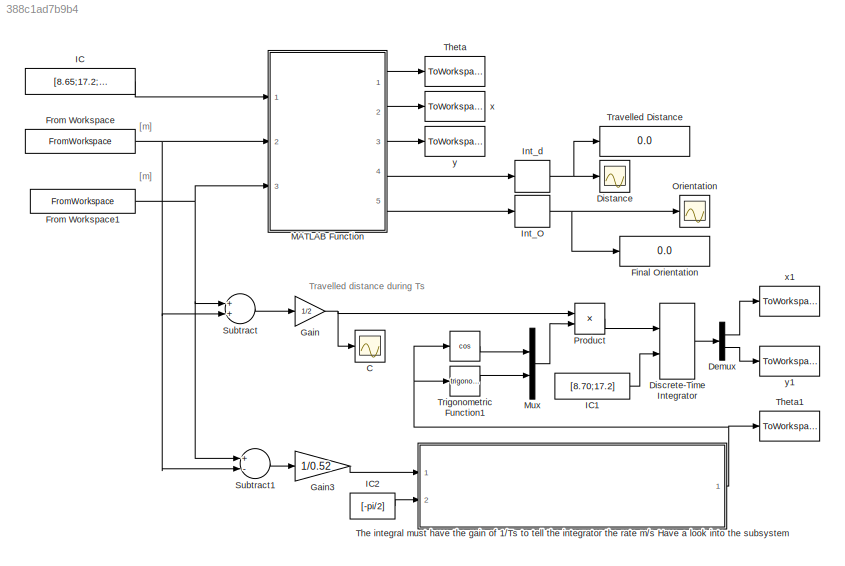
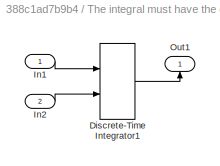
MODEL slx_388c1ad7b9b4
KIND model
CONFIG AbsTol = auto
CONFIG EnableMultiTasking = on
CONFIG FixedStep = 0.02
CONFIG InitFcn = load('Pose_integration_R_L.mat')\n
CONFIG MaxStep = auto
CONFIG MinStep = auto
CONFIG RelTol = 1e-3
CONFIG SampleTimeConstraint = Unconstrained
CONFIG Solver = FixedStepDiscrete
CONFIG SolverName = FixedStepDiscrete
CONFIG StartTime = 0.0
CONFIG StopFcn = I = imread('Enviroment.png');\nx = [0 35.9];\ny=[23.31 0];\nimage(I,'XData',x,'YData',y);\naxis xy;\nhold on\nplot (X.Data, Y.Data,'b');\nplot (X1.Data, Y1.Data,'r');
CONFIG StopTime = 60
BLOCK [Trigonometry]  
  Operator = cos
  Ports = [1, 1]
BLOCK [Scope] C
  NumInputPorts = 1
  Ports = [1]
  ScopeSpecificationString = Simulink.scopes.TimeScopeBlockCfg('CurrentConfiguration', extmgr.ConfigurationSet(extmgr.Configuration('Core','General UI',true),extmgr.Configuration('Core','Source UI',true),extmgr.Configuration('Sources','WiredSimulink',true),extmgr.Configuration('Visuals','Time Domain',true,'SerializedDisplays',{struct('MinYLimReal','-0.00324','MaxYLimReal','0.02097','YLabelReal','','MinYLimMag','0.00000','MaxY...<+1324ch>
BLOCK [Demux] Demux
  DisplayOption = bar
  Outputs = 2
  Ports = [1, 2]
BLOCK [DiscreteIntegrator] Discrete-Time Integrator
  ICPrevOutput = DiscIntNeverNeededParam
  ICPrevScaledInput = DiscIntNeverNeededParam
  InitialConditionSetting = State (most efficient)
  InitialConditionSource = external
  Ports = [2, 1]
  SampleTime = Ts
  gainval = 1/Ts
BLOCK [Scope] Distance
  NumInputPorts = 1
  Ports = [1]
  ScopeSpecificationString = Simulink.scopes.TimeScopeBlockCfg('CurrentConfiguration', extmgr.ConfigurationSet(extmgr.Configuration('Core','General UI',true),extmgr.Configuration('Core','Source UI',true),extmgr.Configuration('Sources','WiredSimulink',true,'DataLoggingVariableName','ScopeData2'),extmgr.Configuration('Visuals','Time Domain',true,'SerializedDisplays',{struct('MinYLimReal','-3.88072','MaxYLimReal','34.92649','YLa...<+1417ch>
BLOCK [Display] Final Orientation
  Decimation = 1
  Ports = [1]
BLOCK [FromWorkspace] From Workspace
  SampleTime = 0
  VariableName = L
  ZeroCross = on
BLOCK [FromWorkspace] From Workspace1
  SampleTime = 0
  VariableName = R
  ZeroCross = on
BLOCK [Gain] Gain
  Gain = 1/2
  OutDataTypeStr = Inherit: Inherit via internal rule
  ParamDataTypeStr = Inherit: Inherit via internal rule
  SaturateOnIntegerOverflow = off
BLOCK [Gain] Gain3
  Gain = 1/0.52
  OutDataTypeStr = Inherit: Inherit via internal rule
  ParamDataTypeStr = Inherit: Inherit via internal rule
  SaturateOnIntegerOverflow = off
BLOCK [Constant] IC
  Value = [8.65;17.2;-pi/2]
BLOCK [Constant] IC1
  Value = [8.70;17.2]
BLOCK [Constant] IC2
  Value = [-pi/2]
BLOCK [DiscreteIntegrator] Int_O
  ICPrevOutput = DiscIntNeverNeededParam
  ICPrevScaledInput = DiscIntNeverNeededParam
  InitialCondition = -pi/2
  InitialConditionSetting = State (most efficient)
  Ports = [1, 1]
  SampleTime = Ts
  gainval = 1/Ts
BLOCK [DiscreteIntegrator] Int_d
  ICPrevOutput = DiscIntNeverNeededParam
  ICPrevScaledInput = DiscIntNeverNeededParam
  InitialConditionSetting = State (most efficient)
  Ports = [1, 1]
  SampleTime = Ts
  gainval = 1/Ts
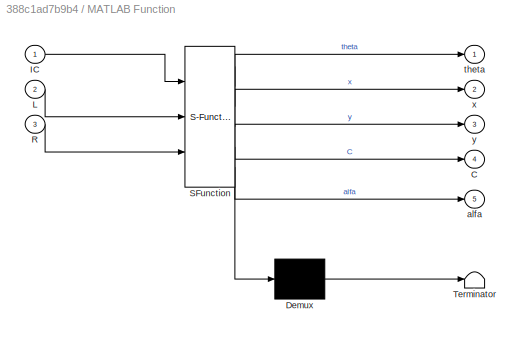
BLOCK [SubSystem] MATLAB Function
  ErrorFcn = Stateflow.Translate.translate
  PermitHierarchicalResolution = ExplicitOnly
  Ports = [3, 5]
  RequestExecContextInheritance = off
  SFBlockType = MATLAB Function
  TreatAsAtomicUnit = on
  Variant = off
BLOCK [Demux] MATLAB Function/ Demux 
  Outputs = 1
  Ports = [1, 1]
BLOCK [S-Function] MATLAB Function/ SFunction 
  EnableBusSupport = off
  FunctionName = sf_sfun
  PortCounts = [3 6]
  Ports = [3, 6]
  SFcnIsStateOwnerBlock = off
  SFunctionDeploymentMode = off
  Tag = Stateflow S-Function Pose_integration_R_L 2
BLOCK [Terminator] MATLAB Function/ Terminator 
BLOCK [Outport] MATLAB Function/C
  IconDisplay = Port number
  Port = 4
BLOCK [Inport] MATLAB Function/IC
  IconDisplay = Port number
BLOCK [Inport] MATLAB Function/L
  IconDisplay = Port number
  Port = 2
BLOCK [Inport] MATLAB Function/R
  IconDisplay = Port number
  Port = 3
BLOCK [Outport] MATLAB Function/alfa
  IconDisplay = Port number
  Port = 5
BLOCK [Outport] MATLAB Function/theta
  IconDisplay = Port number
BLOCK [Outport] MATLAB Function/x
  IconDisplay = Port number
  Port = 2
BLOCK [Outport] MATLAB Function/y
  IconDisplay = Port number
  Port = 3
BLOCK [Mux] Mux
  DisplayOption = bar
  Inputs = 2
  Ports = [2, 1]
BLOCK [Scope] Orientation
  NumInputPorts = 1
  Ports = [1]
  ScopeSpecificationString = Simulink.scopes.TimeScopeBlockCfg('CurrentConfiguration', extmgr.ConfigurationSet(extmgr.Configuration('Core','General UI',true),extmgr.Configuration('Core','Source UI',true),extmgr.Configuration('Sources','WiredSimulink',true,'DataLoggingVariableName','ScopeData3'),extmgr.Configuration('Visuals','Time Domain',true,'SerializedDisplays',{struct('MinYLimReal','-2.36647','MaxYLimReal','3.93488','YLab...<+1414ch>
BLOCK [Product] Product
  InputSameDT = off
  OutDataTypeStr = Inherit: Inherit via internal rule
  Ports = [2, 1]
  RndMeth = Floor
  SaturateOnIntegerOverflow = off
BLOCK [Sum] Subtract
  InputSameDT = off
  OutDataTypeStr = Inherit: Inherit via internal rule
  Ports = [2, 1]
  SaturateOnIntegerOverflow = off
BLOCK [Sum] Subtract1
  InputSameDT = off
  Inputs = +-
  OutDataTypeStr = Inherit: Inherit via internal rule
  Ports = [2, 1]
  SaturateOnIntegerOverflow = off
BLOCK [SubSystem] The integral must have the gain of 1//Ts to tell the integrator the rate m//s Have a look into the subsystem
  Ports = [2, 1]
  RequestExecContextInheritance = off
  Variant = off
BLOCK [DiscreteIntegrator] The integral must have the gain of 1//Ts to tell the integrator the rate m//s Have a look into the subsystem/Discrete-Time Integrator1
  ICPrevOutput = DiscIntNeverNeededParam
  ICPrevScaledInput = DiscIntNeverNeededParam
  InitialConditionSetting = State (most efficient)
  InitialConditionSource = external
  Ports = [2, 1]
  SampleTime = Ts
  gainval = 1/Ts
BLOCK [Inport] The integral must have the gain of 1//Ts to tell the integrator the rate m//s Have a look into the subsystem/In1
  IconDisplay = Port number
BLOCK [Inport] The integral must have the gain of 1//Ts to tell the integrator the rate m//s Have a look into the subsystem/In2
  IconDisplay = Port number
  Port = 2
BLOCK [Outport] The integral must have the gain of 1//Ts to tell the integrator the rate m//s Have a look into the subsystem/Out1
  IconDisplay = Port number
BLOCK [ToWorkspace] Theta
  MaxDataPoints = inf
  Ports = [1]
  SampleTime = -1
  SaveFormat = Timeseries
  VariableName = Theta
BLOCK [ToWorkspace] Theta1
  MaxDataPoints = inf
  Ports = [1]
  SampleTime = -1
  SaveFormat = Timeseries
  VariableName = Theta1
BLOCK [Display] Travelled Distance
  Decimation = 1
  Ports = [1]
BLOCK [Trigonometry] Trigonometric Function1
  Ports = [1, 1]
BLOCK [ToWorkspace] x
  MaxDataPoints = inf
  Ports = [1]
  SampleTime = -1
  SaveFormat = Timeseries
  VariableName = X
BLOCK [ToWorkspace] x1
  MaxDataPoints = inf
  Ports = [1]
  SampleTime = -1
  SaveFormat = Timeseries
  VariableName = X1
BLOCK [ToWorkspace] y
  MaxDataPoints = inf
  Ports = [1]
  SampleTime = -1
  SaveFormat = Timeseries
  VariableName = Y
BLOCK [ToWorkspace] y1
  MaxDataPoints = inf
  Ports = [1]
  SampleTime = -1
  SaveFormat = Timeseries
  VariableName = Y1
ANNOTATION (root): Travelled distance during Ts
ANNOTATION (root): [m]
LINE  :1 -> Mux:1
LINE Demux:1 -> x1:1
LINE Demux:2 -> y1:1
LINE Discrete-Time Integrator:1 -> Demux:1
NET From Workspace1:1 -> MATLAB Function:3, Subtract1:1, Subtract:1
NET From Workspace:1 -> MATLAB Function:2, Subtract1:2, Subtract:2
LINE Gain3:1 -> The integral must have the gain of 1//Ts to tell the integrator the rate m//s Have a look into the subsystem:1
NET Gain:1 -> C:1, Product:1
LINE IC1:1 -> Discrete-Time Integrator:2
LINE IC2:1 -> The integral must have the gain of 1//Ts to tell the integrator the rate m//s Have a look into the subsystem:2
LINE IC:1 -> MATLAB Function:1
NET Int_O:1 -> Final Orientation:1, Orientation:1
NET Int_d:1 -> Distance:1, Travelled Distance:1
LINE MATLAB Function:1 -> Theta:1
LINE MATLAB Function:2 -> x:1
LINE MATLAB Function:3 -> y:1
LINE MATLAB Function:4 -> Int_d:1
LINE MATLAB Function:5 -> Int_O:1
LINE Mux:1 -> Product:2
LINE Product:1 -> Discrete-Time Integrator:1
LINE Subtract1:1 -> Gain3:1
LINE Subtract:1 -> Gain:1
LINE The integral must have the gain of 1//Ts to tell the integrator the rate m//s Have a look into the subsystem/Discrete-Time Integrator1:1 -> The integral must have the gain of 1//Ts to tell the integrator the rate m//s Have a look into the subsystem/Out1:1
LINE The integral must have the gain of 1//Ts to tell the integrator the rate m//s Have a look into the subsystem/In1:1 -> The integral must have the gain of 1//Ts to tell the integrator the rate m//s Have a look into the subsystem/Discrete-Time Integrator1:1
LINE The integral must have the gain of 1//Ts to tell the integrator the rate m//s Have a look into the subsystem/In2:1 -> The integral must have the gain of 1//Ts to tell the integrator the rate m//s Have a look into the subsystem/Discrete-Time Integrator1:2
NET The integral must have the gain of 1//Ts to tell the integrator the rate m//s Have a look into the subsystem:1 ->  :1, Theta1:1, Trigonometric Function1:1
LINE Trigonometric Function1:1 -> Mux:2
note: NET lines group one-source signal fan-out (src -> all destinations, sorted); 1:1 wires keep LINE
CHART MATLAB Function states=1 transitions=1
  STATE_LABEL 'eML_blk_kernel()'
  STATE_LABEL 'SCRIPT:\nfunction [theta,x,y,C,alfa] = fcn(IC,L,R) % IC->Initial Condition [xo,yo,th0]\n                                   % R and L are the displacements of\n                                   % wheels [m]\npersistent x_w y_w suma_theta %  internal variable to be mantain its values\n\nts=0.02; % sample time\n\n%%%%%%%%%%%%%%%%%%%%%%%%%%%%%%%%%%%%%%%%%%%%%%%%%%%%%%%%%%%%%%%%%%%%%%%%%%\n% %%%%%%%%%%%%%%   R...<+986ch>'
